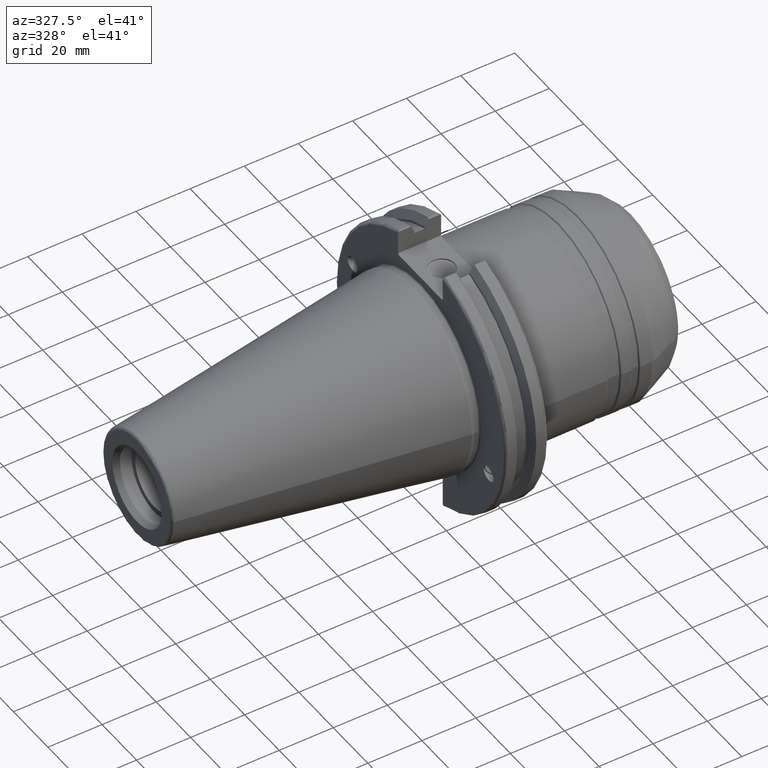
[diagram: clean part render]
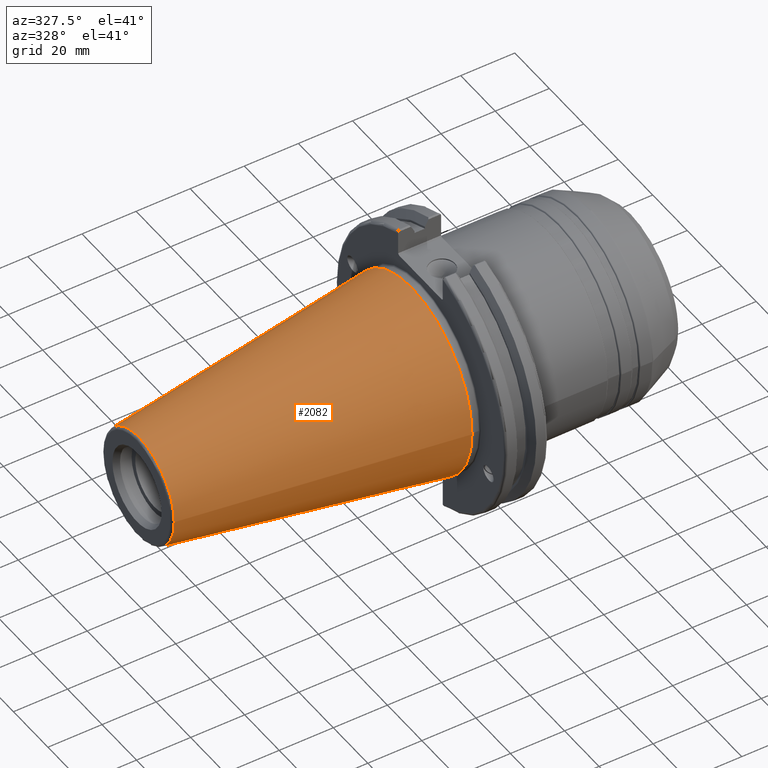
[diagram: same view with one face highlighted and labeled with its STEP entity id]
A machine part, auxiliary view. The second image highlights one B-rep face of the part: STEP entity #2082.
In plain terms, the highlighted conical surface has half-angle 8.297 deg.
Its self-contained STEP definition (entity closure, byte-faithful):
#62=CONICAL_SURFACE('',#2376,27.5166666666666,0.14481249823894);
#233=FACE_OUTER_BOUND('',#350,.T.);
#350=EDGE_LOOP('',(#1820,#1821,#1822,#1823,#1824,#1825,#1826));
#462=LINE('',#3929,#561);
#561=VECTOR('',#3001,27.5166666666666);
#724=CIRCLE('',#2367,20.233121911427);
#725=CIRCLE('',#2368,20.233121911427);
#729=CIRCLE('',#2372,20.233121911427);
#732=CIRCLE('',#2377,34.925);
#733=CIRCLE('',#2378,34.925);
#960=VERTEX_POINT('',#3908);
#961=VERTEX_POINT('',#3909);
#962=VERTEX_POINT('',#3911);
#967=VERTEX_POINT('',#3925);
#968=VERTEX_POINT('',#3926);
#1263=EDGE_CURVE('',#960,#961,#724,.T.);
#1264=EDGE_CURVE('',#961,#962,#725,.T.);
#1268=EDGE_CURVE('',#962,#960,#729,.T.);
#1271=EDGE_CURVE('',#967,#968,#732,.T.);
#1272=EDGE_CURVE('',#968,#967,#733,.T.);
#1273=EDGE_CURVE('',#968,#961,#462,.T.);
#1820=ORIENTED_EDGE('',*,*,#1271,.F.);
#1821=ORIENTED_EDGE('',*,*,#1272,.F.);
#1822=ORIENTED_EDGE('',*,*,#1273,.T.);
#1823=ORIENTED_EDGE('',*,*,#1263,.F.);
#1824=ORIENTED_EDGE('',*,*,#1268,.F.);
#1825=ORIENTED_EDGE('',*,*,#1264,.F.);
#1826=ORIENTED_EDGE('',*,*,#1273,.F.);
#2082=ADVANCED_FACE('',(#233),#62,.T.);
#2367=AXIS2_PLACEMENT_3D('',#3910,#2977,#2978);
#2368=AXIS2_PLACEMENT_3D('',#3912,#2979,#2980);
#2372=AXIS2_PLACEMENT_3D('',#3918,#2987,#2988);
#2376=AXIS2_PLACEMENT_3D('',#3924,#2995,#2996);
#2377=AXIS2_PLACEMENT_3D('',#3927,#2997,#2998);
#2378=AXIS2_PLACEMENT_3D('',#3928,#2999,#3000);
#2977=DIRECTION('center_axis',(-1.,0.,0.));
#2978=DIRECTION('ref_axis',(0.,-1.,3.06161699786838E-17));
#2979=DIRECTION('center_axis',(-1.,0.,0.));
#2980=DIRECTION('ref_axis',(0.,-1.,3.06161699786838E-17));
#2987=DIRECTION('center_axis',(-1.,0.,0.));
#2988=DIRECTION('ref_axis',(0.,-1.,3.06161699786838E-17));
#2995=DIRECTION('center_axis',(1.,0.,0.));
#2996=DIRECTION('ref_axis',(0.,1.,0.));
#2997=DIRECTION('center_axis',(1.,0.,0.));
#2998=DIRECTION('ref_axis',(0.,0.,-1.));
#2999=DIRECTION('center_axis',(1.,0.,0.));
#3000=DIRECTION('ref_axis',(0.,0.,-1.));
#3001=DIRECTION('',(-0.989532981063281,0.144306893071729,1.76724974695192E-17));
#3908=CARTESIAN_POINT('',(-100.744306893072,20.233121911427,-6.19460699639681E-15));
#3909=CARTESIAN_POINT('',(-100.744306893072,-20.233121911427,-2.47784279855872E-15));
#3910=CARTESIAN_POINT('Origin',(-100.744306893072,0.,-3.09730349819841E-15));
#3911=CARTESIAN_POINT('',(-100.744306893072,-2.47784279855872E-15,20.233121911427));
#3912=CARTESIAN_POINT('Origin',(-100.744306893072,0.,-3.09730349819841E-15));
#3918=CARTESIAN_POINT('Origin',(-100.744306893072,0.,-3.09730349819841E-15));
#3924=CARTESIAN_POINT('Origin',(-50.8,0.,0.));
#3925=CARTESIAN_POINT('',(0.,34.925,0.));
#3926=CARTESIAN_POINT('',(-8.88178419700125E-15,-34.925,-4.27707894602213E-15));
#3927=CARTESIAN_POINT('Origin',(0.,0.,0.));
#3928=CARTESIAN_POINT('Origin',(0.,0.,0.));
#3929=CARTESIAN_POINT('',(-50.8,-27.5166666666666,-3.3698197756538E-15));